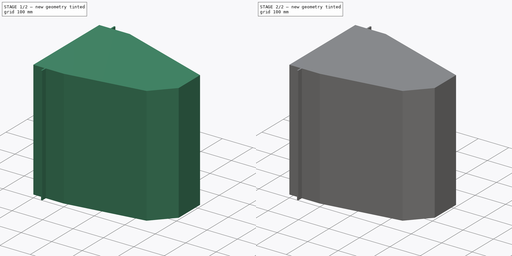
[diagram: build sequence overview — one tinted view per stage of 2, left to right]
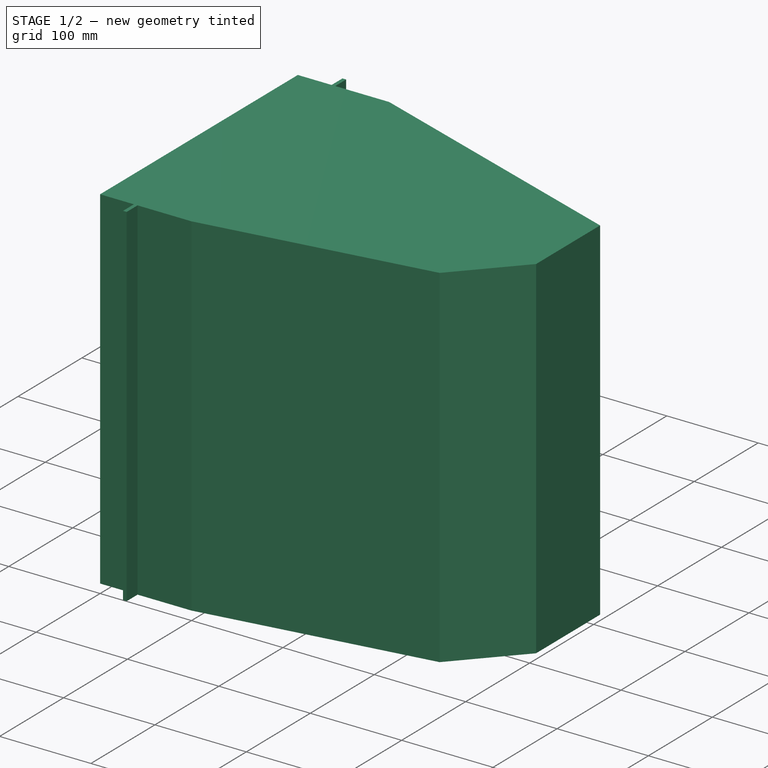
[diagram: stage 1 of 2 — iso view after this stage's code; geometry added in this stage tinted green]
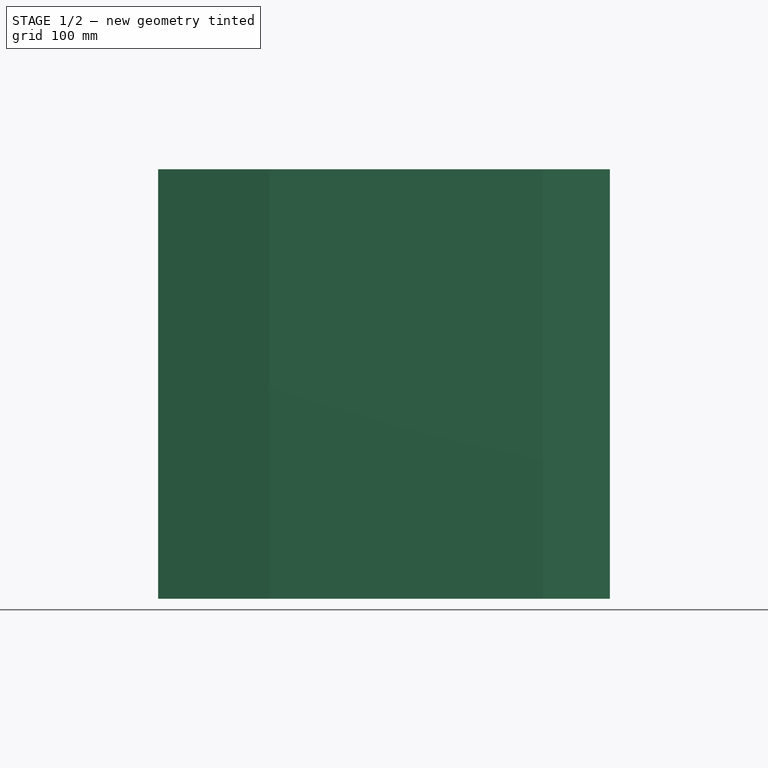
[diagram: stage 1 of 2 — front view after this stage's code; geometry added in this stage tinted green]
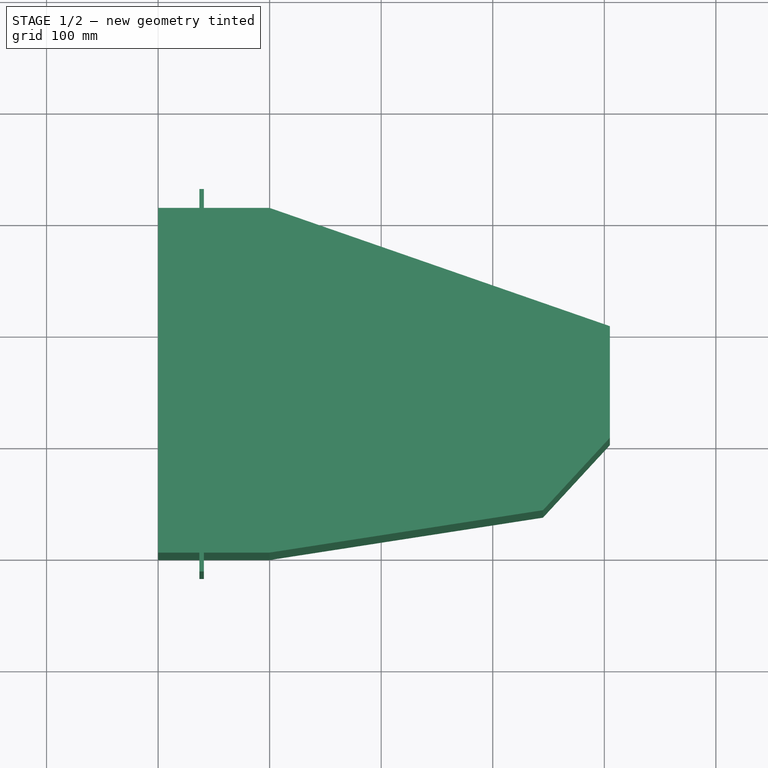
[diagram: stage 1 of 2 — top view after this stage's code; geometry added in this stage tinted green]
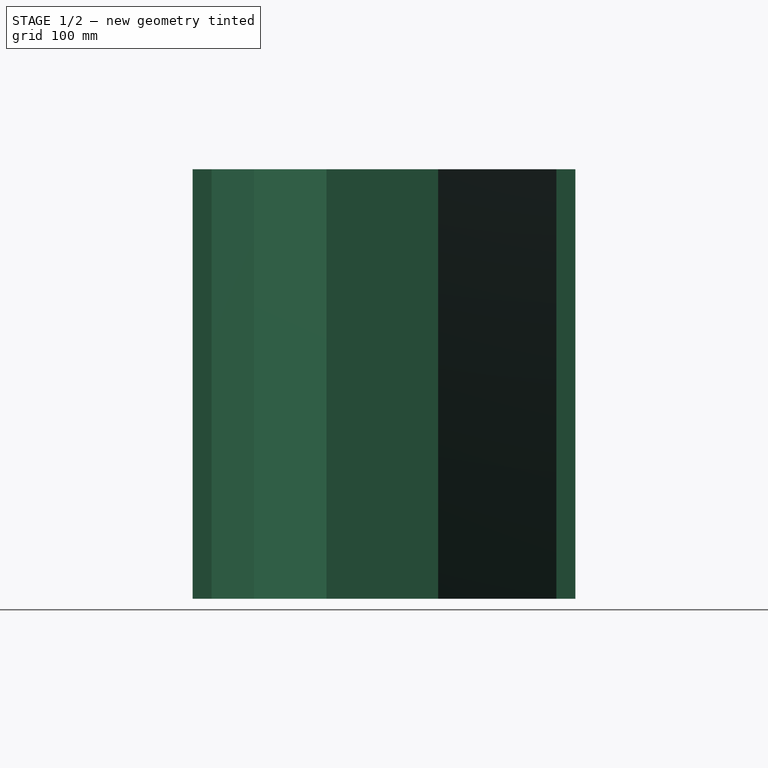
[diagram: stage 1 of 2 — right view after this stage's code; geometry added in this stage tinted green]
FCSTD DOCUMENT  (FreeCAD 0.18R16131 (Git))
Label: CRT
License: All rights reserved
LicenseURL: http://en.wikipedia.org/wiki/All_rights_reserved
objects: Sketcher::SketchObject×2, PartDesign::Pad×1, PartDesign::Pocket×1, PartDesign::Body×1
note: 7 computed .brp shape members not serialized (recipe doc carries the construction recipe); baked Part::Feature solids carry a one-line shape summary decoded from their .brp

FEATURE [Sketcher::SketchObject] Sketch
  MapMode = 5
  Support = -> [XY_Plane]
  sketch-geometry (15):
    g0: LineSegment StartX=0 StartY=0 StartZ=0 EndX=0 EndY=309 EndZ=0
    g1: LineSegment StartX=100 StartY=309 StartZ=0 EndX=405 EndY=203 EndZ=0
    g2: LineSegment StartX=405 StartY=203 StartZ=0 EndX=405 EndY=103 EndZ=0
    g3: LineSegment StartX=405 StartY=103 StartZ=0 EndX=345 EndY=38 EndZ=0
    g4: LineSegment StartX=345 StartY=38 StartZ=0 EndX=100 EndY=0 EndZ=0
    g5: LineSegment StartX=41 StartY=309 StartZ=0 EndX=41 EndY=326 EndZ=0
    g6: LineSegment StartX=41 StartY=326 StartZ=0 EndX=37 EndY=326 EndZ=0
    g7: LineSegment StartX=37 StartY=326 StartZ=0 EndX=37 EndY=309 EndZ=0
    g8: LineSegment StartX=41 StartY=0 StartZ=0 EndX=41 EndY=-17 EndZ=0
    g9: LineSegment StartX=41 StartY=-17 StartZ=0 EndX=37 EndY=-17 EndZ=0
    g10: LineSegment StartX=37 StartY=-17 StartZ=0 EndX=37 EndY=0 EndZ=0
    g11: LineSegment StartX=37 StartY=309 StartZ=0 EndX=0 EndY=309 EndZ=0
    g12: LineSegment StartX=41 StartY=309 StartZ=0 EndX=100 EndY=309 EndZ=0
    g13: LineSegment StartX=0 StartY=0 StartZ=0 EndX=37 EndY=0 EndZ=0
    g14: LineSegment StartX=41 StartY=0 StartZ=0 EndX=100 EndY=0 EndZ=0
  constraints (44):
    c: Coincident(g-1,g0)
    c: PointOnObject(g0,g-2)
    c: Coincident(g1,g2)
    c: Vertical(g2)
    c: Coincident(g2,g3)
    c: Coincident(g3,g4)
    c: PointOnObject(g4,g-1)
    c: Vertical(g1,g4)
    c: DistanceY(g0,g0) = 309
    c: DistanceY(g0,g1) = 203
    c: DistanceX(g0,g1) = 405
    c: DistanceX(g0,g1) = 100
    c: DistanceY(g2,g2) = 100
    c: DistanceX(g3,g2) = 60
    c: DistanceY(g3,g2) = 65
    c: Coincident(g5,g6)
    c: Coincident(g6,g7)
    c: Horizontal(g6)
    c: Vertical(g5)
    c: Vertical(g7)
    c: Coincident(g8,g9)
    c: Coincident(g9,g10)
    c: Horizontal(g9)
    c: Vertical(g8)
    c: Vertical(g10)
    c: Vertical(g6,g9)
    c: Vertical(g5,g8)
    c: DistanceX(g6,g6) = 4
    c: DistanceX(g5,g1) = 364
    c: DistanceY(g9,g6) = 343
    c: Equal(g10,g7)
    c: Coincident(g11,g0)
    c: Horizontal(g11)
    c: Coincident(g12,g1)
    c: Horizontal(g12)
    c: Coincident(g13,g0)
    c: Horizontal(g13)
    c: Coincident(g14,g4)
    c: Coincident(g13,g10)
    c: Coincident(g14,g8)
    c: Coincident(g7,g11)
    c: Coincident(g5,g12)
    c: Horizontal(g7,g5)
    c: Horizontal(g10,g8)
FEATURE [PartDesign::Pad] Pad
  Length = 385
  Length2 = 100
  Profile = -> Sketch
  Type = 0
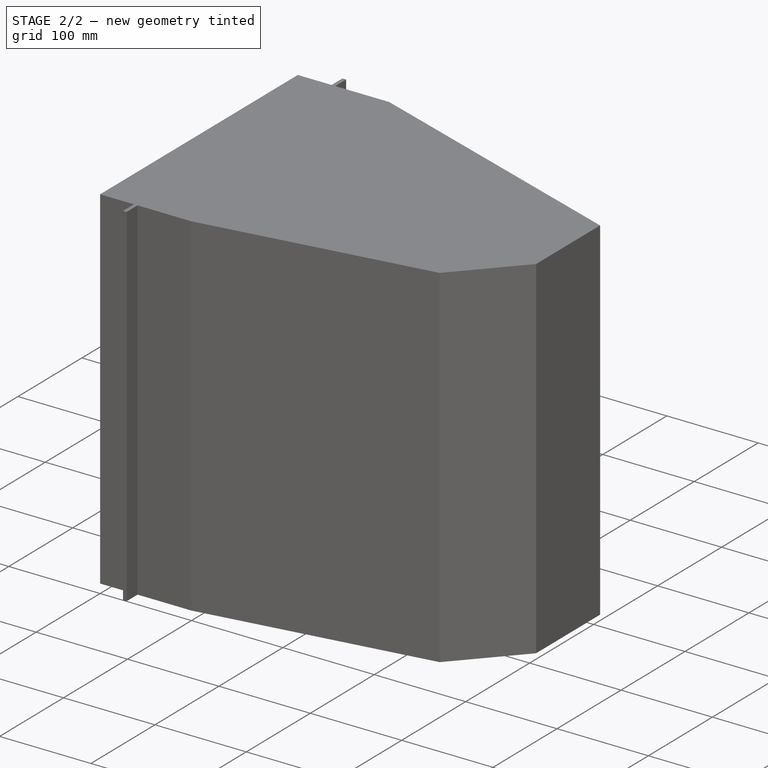
[diagram: stage 2 of 2 — iso view after this stage's code; geometry added in this stage tinted green]
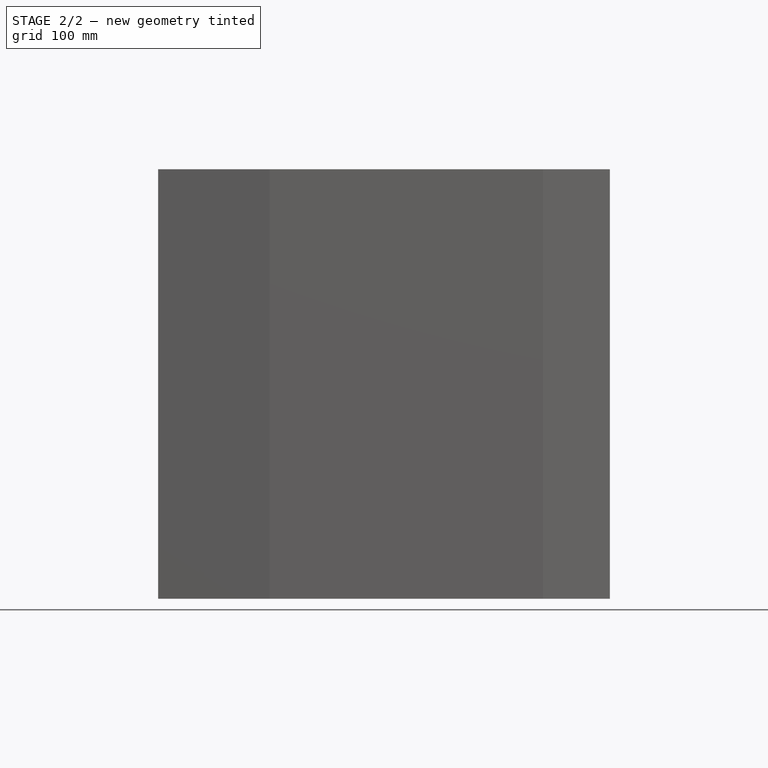
[diagram: stage 2 of 2 — front view after this stage's code; geometry added in this stage tinted green]
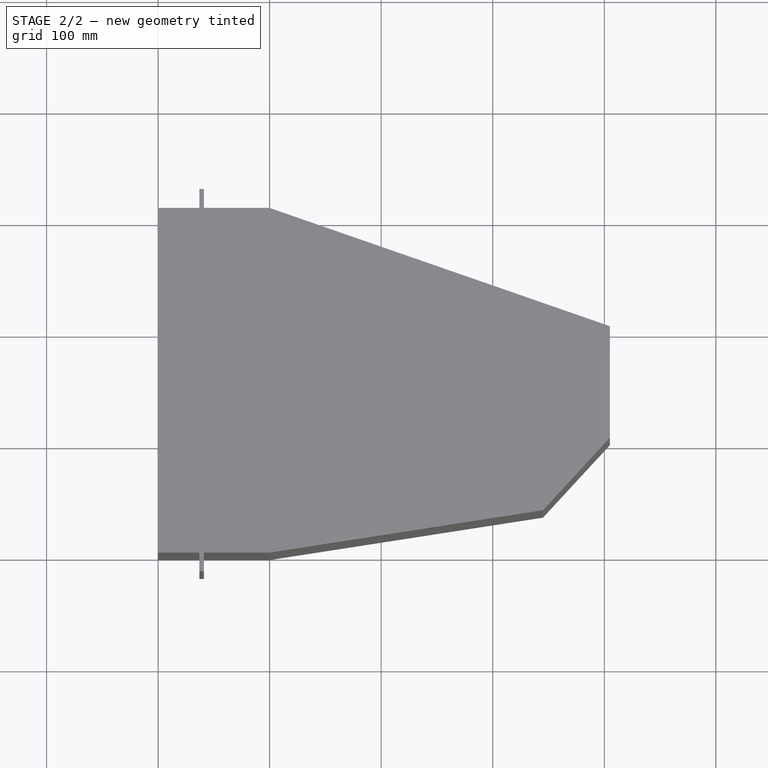
[diagram: stage 2 of 2 — top view after this stage's code; geometry added in this stage tinted green]
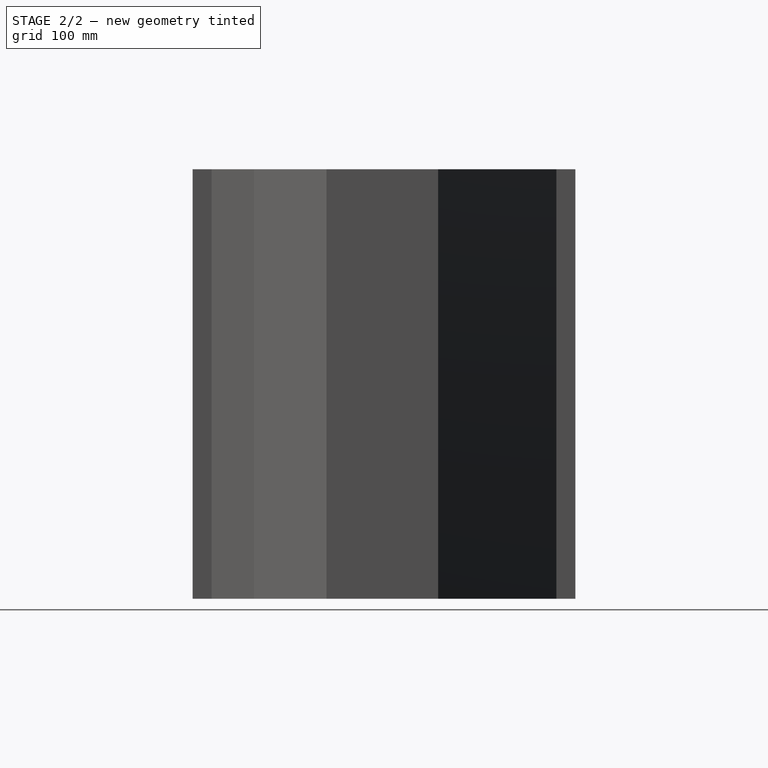
[diagram: stage 2 of 2 — right view after this stage's code; geometry added in this stage tinted green]
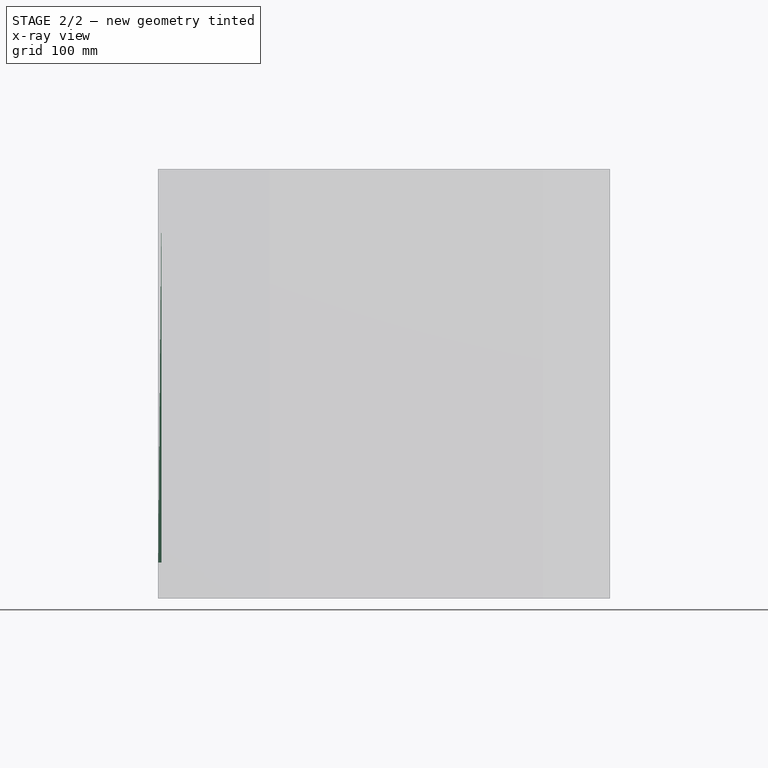
[diagram: stage 2 of 2 — x-ray composite at the front view; earlier geometry ghosted, this stage's added geometry solid]
FEATURE [Sketcher::SketchObject] Sketch001
  ExternalGeometry = -> [Pad]
  MapMode = 5
  Placement = pos=(0,0,0) rot=(0.57735,-0.57735,-0.57735;2.0944rad)
  Support = -> [Pad]
  sketch-geometry (7):
    g0: LineSegment StartX=-275 StartY=352.5 StartZ=0 EndX=-34 EndY=352.5 EndZ=0
    g1: LineSegment StartX=-34 StartY=352.5 StartZ=0 EndX=-34 EndY=32.5 EndZ=0
    g2: LineSegment StartX=-34 StartY=32.5 StartZ=0 EndX=-275 EndY=32.5 EndZ=0
    g3: LineSegment StartX=-275 StartY=32.5 StartZ=0 EndX=-275 EndY=352.5 EndZ=0
    g4: LineSegment [constr] StartX=-309 StartY=0 StartZ=0 EndX=-275 EndY=32.5 EndZ=0
    g5: LineSegment [constr] StartX=-34 StartY=32.5 StartZ=0 EndX=0 EndY=0 EndZ=0
    g6: LineSegment [constr] StartX=-34 StartY=352.5 StartZ=0 EndX=0 EndY=385 EndZ=0
  constraints (18):
    c: Coincident(g0,g1)
    c: Coincident(g1,g2)
    c: Coincident(g2,g3)
    c: Coincident(g3,g0)
    c: Horizontal(g0)
    c: Horizontal(g2)
    c: Vertical(g1)
    c: Vertical(g3)
    c: DistanceX(g0,g0) = 241
    c: DistanceY(g3,g3) = 320
    c: Coincident(g4,g-4)
    c: Coincident(g4,g2)
    c: Coincident(g5,g1)
    c: Coincident(g5,g-1)
    c: Coincident(g6,g0)
    c: Coincident(g6,g-3)
    c: Equal(g4,g5)
    c: Equal(g5,g6)
FEATURE [PartDesign::Pocket] Pocket
  BaseFeature = -> Pad
  Length = 3
  Length2 = 100
  Profile = -> Sketch001
  Type = 0
FEATURE [PartDesign::Body] Body
  Group = -> [Sketch,Pad,Sketch001,Pocket]
  Origin = -> Origin
  Tip = -> Pocket
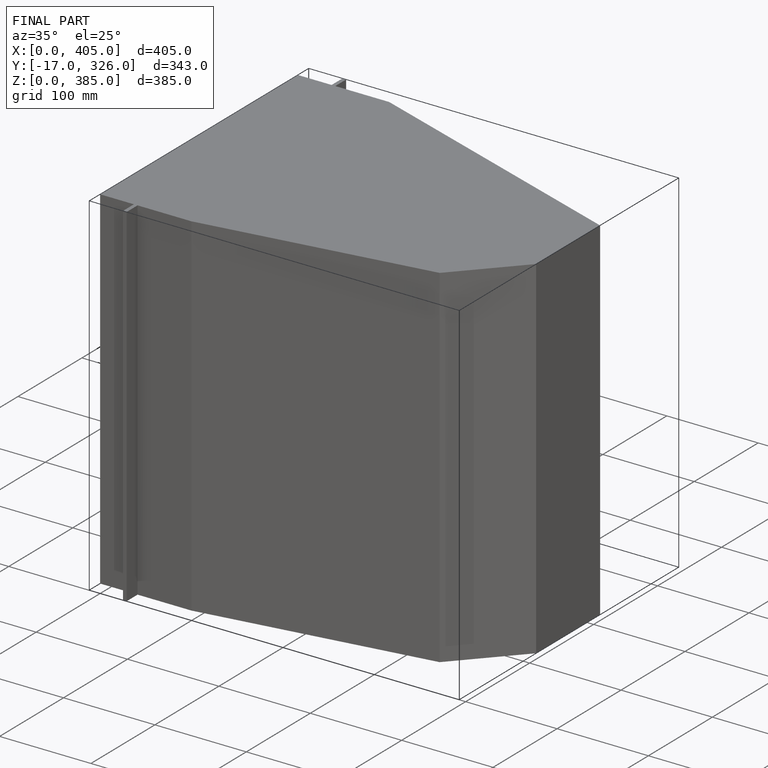
[diagram: finished part — iso view with bounding-box wireframe]
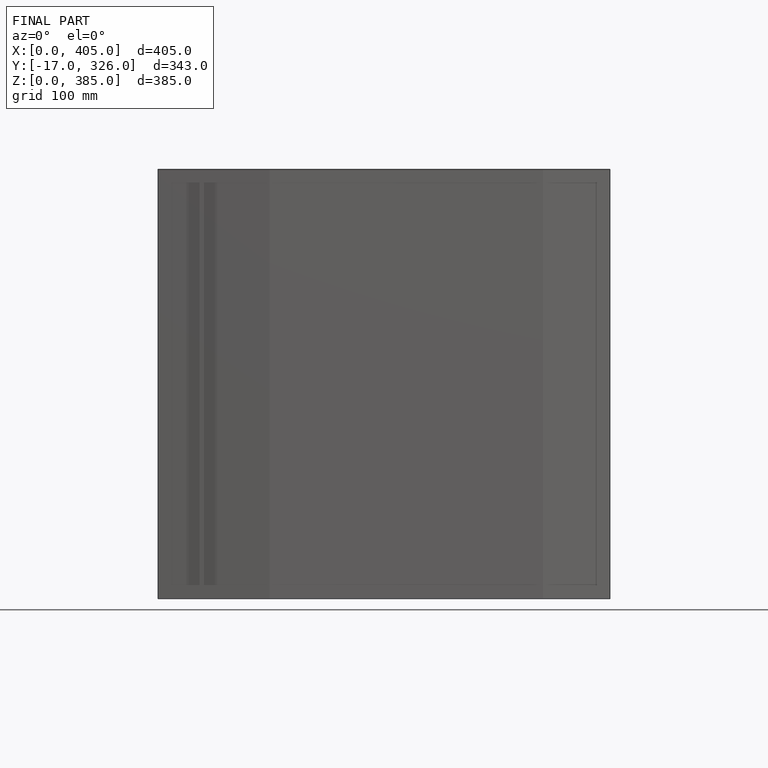
[diagram: finished part — front view with bounding-box wireframe]
